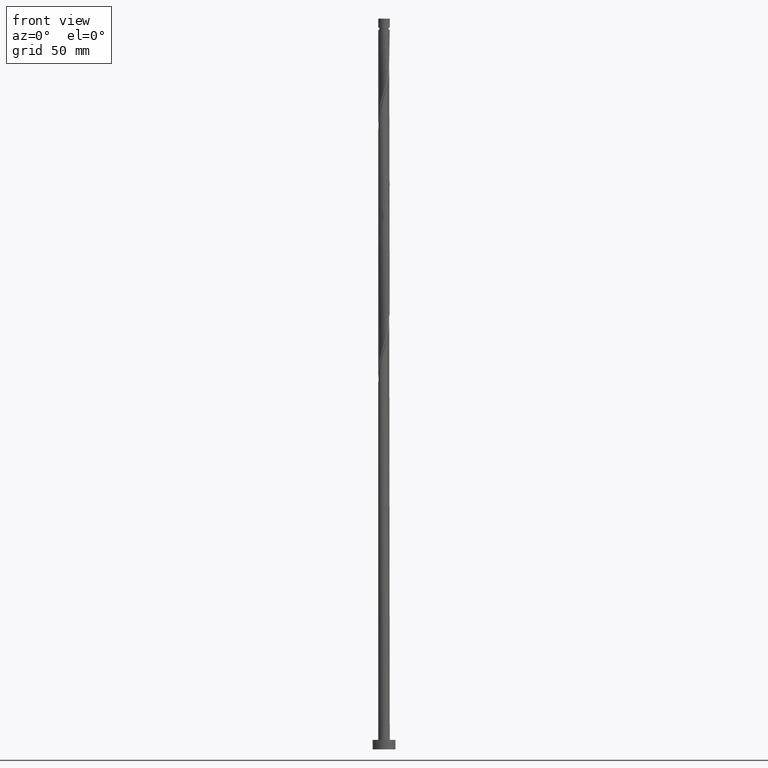
[diagram: clean part render]
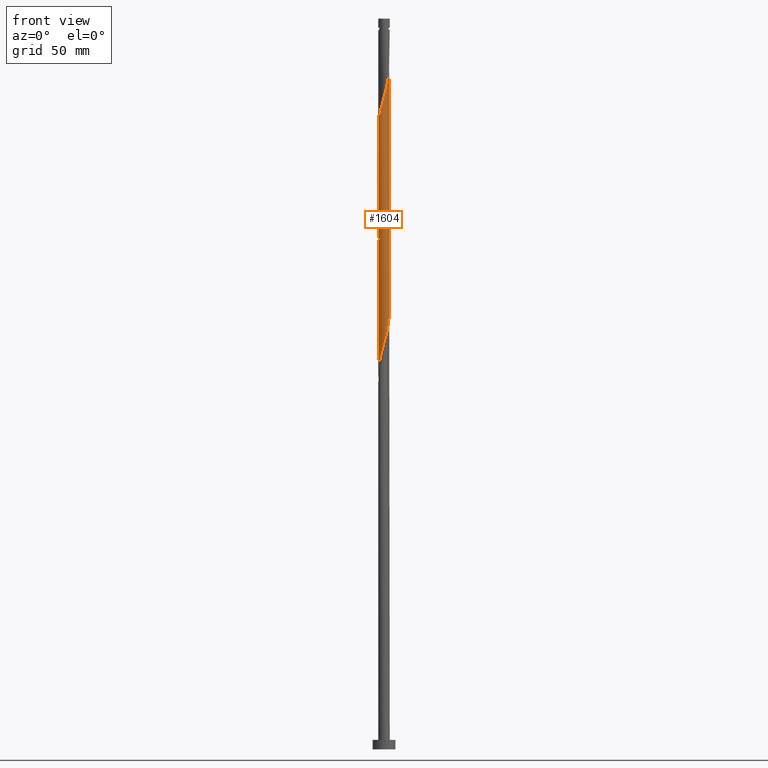
[diagram: same view with one face highlighted and labeled with its STEP entity id]
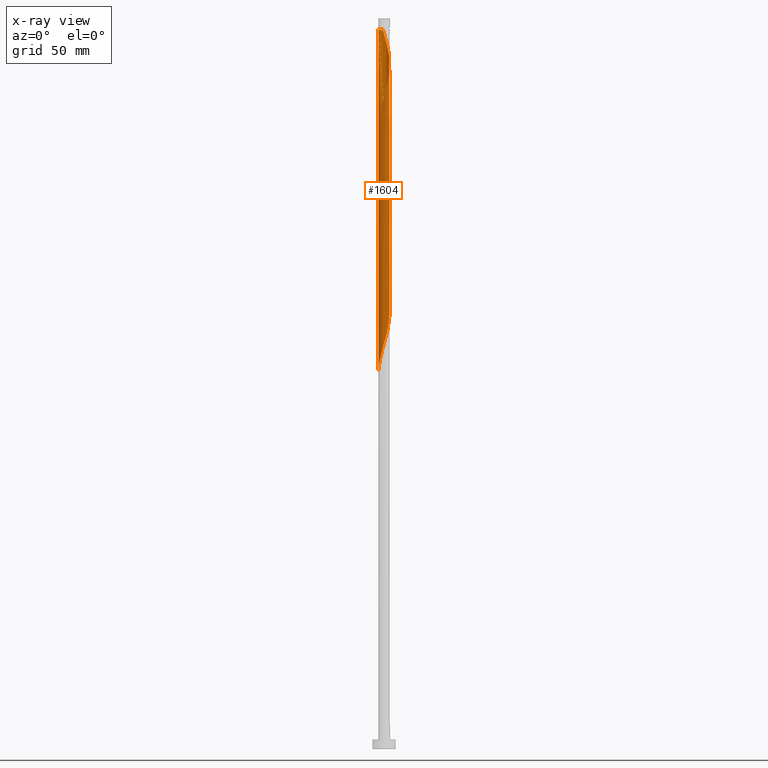
[diagram: x-ray of the same camera — body ghosted, the highlighted face saturated]
A machine part, front view. The second image highlights one B-rep face of the part: STEP entity #1604.
The next image is the same camera in x-ray: the body ghosted, the highlighted face saturated — about 0% of this face is hidden behind the body in this view.
In plain terms, the highlighted cylindrical surface (bore or boss wall) has radius 3 mm, axis along (-0, -0, -1).
Its self-contained STEP definition (entity closure, byte-faithful):
#1 = CARTESIAN_POINT ( 'NONE',  ( 1.785379858637176298, -2.410895841875524859, 287.1727578589047880 ) ) ;
#2 = CARTESIAN_POINT ( 'NONE',  ( -2.611625341554437263, 1.476283534877587122, 324.9505356366826163 ) ) ;
#11 = CARTESIAN_POINT ( 'NONE',  ( -2.766788993523056295, 1.201790650553047346, 259.3949800811271302 ) ) ;
#12 = CARTESIAN_POINT ( 'NONE',  ( -1.785379858637176520, 2.410895841875523971, 320.5060911922381024 ) ) ;
#30 = CARTESIAN_POINT ( 'NONE',  ( 2.247618455994266462, 1.987010638188426048, 367.1727578589048449 ) ) ;
#34 = CARTESIAN_POINT ( 'NONE',  ( -2.980586974261064004, -0.3407363920471026542, 198.2838689700159875 ) ) ;
#38 = CARTESIAN_POINT ( 'NONE',  ( 2.980586974261067557, -0.3407363920471044305, 358.2838689700159307 ) ) ;
#39 = ORIENTED_EDGE ( 'NONE', *, *, #964, .T. ) ;
#50 = CARTESIAN_POINT ( 'NONE',  ( -1.997955648279248875, -2.259998966801996190, 206.0616467477937590 ) ) ;
#54 = CARTESIAN_POINT ( 'NONE',  ( 2.424175730171095999, -1.795214230025625746, 352.7283134144604446 ) ) ;
#64 = AXIS2_PLACEMENT_3D ( 'NONE', #798, #668, #1389 ) ;
#80 = EDGE_CURVE ( 'NONE', #722, #960, #1482, .T. ) ;
#115 = CYLINDRICAL_SURFACE ( 'NONE', #1348, 3.000000000000000444 ) ;
#116 = CARTESIAN_POINT ( 'NONE',  ( 2.744447700168706206, 1.251970017003499303, 234.9505356366825879 ) ) ;
#123 = CARTESIAN_POINT ( 'NONE',  ( 2.766788993523055851, -1.201790650553048234, 226.0616467477937590 ) ) ;
#130 = CARTESIAN_POINT ( 'NONE',  ( -0.02731362638453790903, 2.999875658392149091, 247.1727578589048449 ) ) ;
#136 = CARTESIAN_POINT ( 'NONE',  ( -0.5969924622639753986, -2.939999999999999503, 278.2838689700159875 ) ) ;
#138 = VECTOR ( 'NONE', #659, 1000.000000000000000 ) ;
#141 = CARTESIAN_POINT ( 'NONE',  ( 3.000000000000000444, 3.673940397442060361E-16, 378.2838689700159875 ) ) ;
#144 = CARTESIAN_POINT ( 'NONE',  ( 3.000000000000000444, 3.673940397442060361E-16, 384.1999999999999886 ) ) ;
#146 = CARTESIAN_POINT ( 'NONE',  ( -1.997955648279248875, -2.259998966801996190, 272.7283134144603309 ) ) ;
#152 = CARTESIAN_POINT ( 'NONE',  ( -0.6504259784947283851, -2.928642355512055317, 340.5060911922382161 ) ) ;
#156 = CARTESIAN_POINT ( 'NONE',  ( 1.741185482790980066, 2.443004935426438262, 307.1727578589047312 ) ) ;
#163 = CARTESIAN_POINT ( 'NONE',  ( -2.247618455994265130, -1.987010638188427381, 333.8394245255715305 ) ) ;
#173 = ORIENTED_EDGE ( 'NONE', *, *, #292, .F. ) ;
#175 = CARTESIAN_POINT ( 'NONE',  ( -2.844610918258236421, -0.9529893618115735654, 200.5060911922382161 ) ) ;
#180 = CARTESIAN_POINT ( 'NONE',  ( -0.02731362638453969927, -2.999875658392153088, 342.7283134144605015 ) ) ;
#181 = VERTEX_POINT ( 'NONE', #191 ) ;
#191 = CARTESIAN_POINT ( 'NONE',  ( -3.000000000000000444, -1.076285910287875982E-15, 330.4093122135374188 ) ) ;
#218 = CARTESIAN_POINT ( 'NONE',  ( 3.000000000000000444, 1.793809850479793368E-15, 297.0759788802040475 ) ) ;
#228 = CARTESIAN_POINT ( 'NONE',  ( 3.000000000000000444, 1.793809850479793368E-15, 297.0759788802040475 ) ) ;
#247 = DIRECTION ( 'NONE',  ( -0.000000000000000000, -0.000000000000000000, -1.000000000000000000 ) ) ;
#248 = CARTESIAN_POINT ( 'NONE',  ( 3.000000000000001332, 0.1709212123392930549, 297.6815701895886832 ) ) ;
#257 = CARTESIAN_POINT ( 'NONE',  ( 2.211065689225170328, 2.027606598413808303, 238.2838689700159307 ) ) ;
#265 = CARTESIAN_POINT ( 'NONE',  ( 2.956194341916737578, -0.6002808636434374678, 228.2838689700159591 ) ) ;
#274 = CARTESIAN_POINT ( 'NONE',  ( -1.484415317302709703, -2.626010904050883443, 274.9505356366826732 ) ) ;
#282 = CARTESIAN_POINT ( 'NONE',  ( 1.785379858637176298, -2.410895841875524859, 220.5060911922381592 ) ) ;
#292 = EDGE_CURVE ( 'NONE', #1611, #181, #355, .T. ) ;
#297 = CARTESIAN_POINT ( 'NONE',  ( -0.9059989139450647100, -2.877253563794370805, 277.1727578589049017 ) ) ;
#298 = CARTESIAN_POINT ( 'NONE',  ( -0.3426132633519624049, 2.997004880578669539, 314.9505356366826732 ) ) ;
#300 = VECTOR ( 'NONE', #1778, 1000.000000000000000 ) ;
#312 = CARTESIAN_POINT ( 'NONE',  ( 1.195207115623887928, 2.751632233922626458, 309.3949800811270165 ) ) ;
#317 = CARTESIAN_POINT ( 'NONE',  ( 2.844610918258240861, -0.9529893618115777842, 356.0616467477938158 ) ) ;
#330 = CARTESIAN_POINT ( 'NONE',  ( -1.741185482790978956, -2.443004935426439150, 207.1727578589048449 ) ) ;
#336 = CARTESIAN_POINT ( 'NONE',  ( 1.785379858637181405, 2.410895841875527523, 369.3949800811271302 ) ) ;
#344 = VERTEX_POINT ( 'NONE', #937 ) ;
#355 = LINE ( 'NONE', #1219, #138 ) ;
#367 = CARTESIAN_POINT ( 'NONE',  ( 2.956194341916737578, -0.6002808636434374678, 294.9505356366827300 ) ) ;
#373 = CARTESIAN_POINT ( 'NONE',  ( 2.944774136347767080, 0.6540087066196468291, 299.3949800811270734 ) ) ;
#389 = CARTESIAN_POINT ( 'NONE',  ( 2.584311715169900214, 1.523592123514559304, 302.7283134144603309 ) ) ;
#399 = CARTESIAN_POINT ( 'NONE',  ( 2.844610918258236421, 0.9529893618115723442, 300.5060911922381592 ) ) ;
#400 = CARTESIAN_POINT ( 'NONE',  ( -2.456461689585819119, 1.750776419202128231, 257.1727578589048449 ) ) ;
#408 = CARTESIAN_POINT ( 'NONE',  ( -2.766788993523060292, -1.201790650553047568, 330.5060911922381024 ) ) ;
#409 = EDGE_CURVE ( 'NONE', #1611, #1455, #887, .T. ) ;
#410 = CARTESIAN_POINT ( 'NONE',  ( 3.016399812174360484, 0.02746407747455505491, 230.5060911922381592 ) ) ;
#418 = CARTESIAN_POINT ( 'NONE',  ( 2.247618455994259801, -1.987010638188425604, 289.3949800811269597 ) ) ;
#429 = CARTESIAN_POINT ( 'NONE',  ( -2.844610918258236421, -0.9529893618115735654, 267.1727578589049017 ) ) ;
#430 = CARTESIAN_POINT ( 'NONE',  ( -1.245111594254569631, 2.729413328510879921, 318.2838689700158170 ) ) ;
#439 = CARTESIAN_POINT ( 'NONE',  ( 0.6504259784947244993, -2.928642355512051321, 282.7283134144605015 ) ) ;
#449 = CARTESIAN_POINT ( 'NONE',  ( 2.211065689225174324, -2.027606598413812744, 351.6172023033493019 ) ) ;
#452 = CARTESIAN_POINT ( 'NONE',  ( 0.9582386936374888142, -2.860279830445434435, 217.1727578589049017 ) ) ;
#453 = CARTESIAN_POINT ( 'NONE',  ( 0.5969924622639756207, 2.939999999999999503, 311.6172023033492451 ) ) ;
#471 = CARTESIAN_POINT ( 'NONE',  ( 0.3426132633519640147, 2.997004880578673092, 374.9505356366825026 ) ) ;
#473 = CARTESIAN_POINT ( 'NONE',  ( -2.744447700168706206, -1.251970017003499525, 201.6172023033493304 ) ) ;
#480 = CARTESIAN_POINT ( 'NONE',  ( 2.766788993523062068, 1.201790650553046236, 363.8394245255714736 ) ) ;
#484 = CARTESIAN_POINT ( 'NONE',  ( 1.245111594254569187, -2.729413328510879921, 218.2838689700159875 ) ) ;
#489 =( BOUNDED_CURVE ( )  B_SPLINE_CURVE ( 2, ( #1881, #720, #1144, #1161, #1737, #408, #1009, #1210, #163, #1180, #1777, #884, #1363, #1203, #152, #1190, #180, #769, #1077, #1640, #906, #1502, #757, #1491, #449, #54, #1343, #777, #317, #1798, #38, #631, #1805, #747, #1046, #480, #637, #1218, #30, #1816, #336, #1477, #1032, #623, #607, #471, #1337, #1619, #1056 ),
 .UNSPECIFIED., .F., .T. ) 
 B_SPLINE_CURVE_WITH_KNOTS ( ( 3, 2, 2, 2, 2, 2, 2, 2, 2, 2, 2, 2, 2, 2, 2, 2, 2, 2, 2, 2, 2, 2, 2, 2, 3 ),
 ( 0.5545286012773121831, 0.5583333333333333481, 0.5666666666666666519, 0.5749999999999999556, 0.5833333333333332593, 0.5916666666666666741, 0.5999999999999999778, 0.6083333333333333925, 0.6166666666666666963, 0.6250000000000000000, 0.6333333333333333037, 0.6416666666666666075, 0.6500000000000001332, 0.6583333333333334370, 0.6666666666666668517, 0.6750000000000001554, 0.6833333333333333481, 0.6916666666666667629, 0.7000000000000000666, 0.7083333333333333703, 0.7166666666666667851, 0.7250000000000000888, 0.7333333333333335036, 0.7416666666666668073, 0.7500000000000001110 ),
 .UNSPECIFIED. ) 
 CURVE ( )  GEOMETRIC_REPRESENTATION_ITEM ( )  RATIONAL_B_SPLINE_CURVE ( ( 0.9066196499552491295, 0.9068171577856622978, 0.9090909090909607970, 0.9041108139712090708, 0.9090909090909607970, 0.9041108139712090708, 0.9090909090909607970, 0.9041108139712090708, 0.9090909090909607970, 0.9041108139712090708, 0.9090909090909607970, 0.9041108139712090708, 0.9090909090909607970, 0.9041108139712090708, 0.9090909090909607970, 0.9041108139712090708, 0.9090909090909607970, 0.9041108139712090708, 0.9090909090909607970, 0.9041108139712090708, 0.9090909090909607970, 0.9041108139712090708, 0.9090909090909607970, 0.9041108139712090708, 0.9090909090909607970, 0.9041108139712090708, 0.9090909090909607970, 0.9041108139712090708, 0.9090909090909607970, 0.9041108139712090708, 0.9090909090909607970, 0.9041108139712090708, 0.9090909090909607970, 0.9041108139712090708, 0.9090909090909607970, 0.9041108139712090708, 0.9090909090909607970, 0.9041108139712090708, 0.9090909090909607970, 0.9041108139712090708, 0.9090909090909607970, 0.9041108139712090708, 0.9090909090909607970, 0.9041108139712090708, 0.9090909090909607970, 0.9041108139712090708, 0.9090909090909607970, 0.9041108139712089597, 0.9090909090909609080 ) ) 
 REPRESENTATION_ITEM ( '' )  );
#514 =( BOUNDED_CURVE ( )  B_SPLINE_CURVE ( 2, ( #218, #1243, #1264, #367, #1845, #1706, #680, #538, #418, #1601, #1, #1281, #574, #564, #439, #1172, #1469, #589, #136, #297, #1758, #274, #732, #146, #1014, #1318, #1889, #580, #429, #1770, #1484, #1036, #1153, #1146, #1622, #11, #866, #400, #1308, #1450, #1882, #1458, #888, #1875, #1165, #1003, #130, #558, #1140, #1730, #1585, #1026, #724, #1291, #257, #848, #1441, #116, #1592, #706, #1738, #410, #1010, #265, #858, #123, #713, #1299, #1744, #1613, #282, #878, #484, #452, #625, #1643, #1339, #1070, #940, #930, #1820, #1206, #330, #50, #1367, #1087, #1080, #473, #175, #600, #34, #760, #1654 ),
 .UNSPECIFIED., .F., .T. ) 
 B_SPLINE_CURVE_WITH_KNOTS ( ( 3, 2, 2, 2, 2, 2, 2, 2, 2, 2, 2, 2, 2, 2, 2, 2, 2, 2, 2, 2, 2, 2, 2, 2, 2, 2, 2, 2, 2, 2, 2, 2, 2, 2, 2, 2, 2, 2, 2, 2, 2, 2, 2, 2, 2, 2, 3 ),
 ( 0.5545286012773115170, 0.5583333333333333481, 0.5666666666666666519, 0.5749999999999999556, 0.5833333333333333703, 0.5916666666666666741, 0.5999999999999999778, 0.6083333333333332815, 0.6166666666666666963, 0.6250000000000000000, 0.6333333333333333037, 0.6416666666666667185, 0.6500000000000000222, 0.6583333333333333259, 0.6666666666666666297, 0.6750000000000000444, 0.6833333333333333481, 0.6916666666666666519, 0.6999999999999999556, 0.7083333333333333703, 0.7166666666666666741, 0.7249999999999999778, 0.7333333333333332815, 0.7416666666666666963, 0.7500000000000000000, 0.7583333333333333037, 0.7666666666666667185, 0.7750000000000000222, 0.7833333333333333259, 0.7916666666666666297, 0.8000000000000000444, 0.8083333333333333481, 0.8166666666666666519, 0.8249999999999999556, 0.8333333333333333703, 0.8416666666666666741, 0.8499999999999999778, 0.8583333333333332815, 0.8666666666666666963, 0.8750000000000000000, 0.8833333333333333037, 0.8916666666666667185, 0.9000000000000000222, 0.9083333333333333259, 0.9166666666666666297, 0.9250000000000000444, 0.9295286012773112949 ),
 .UNSPECIFIED. ) 
 CURVE ( )  GEOMETRIC_REPRESENTATION_ITEM ( )  RATIONAL_B_SPLINE_CURVE ( ( 0.9066196499552428012, 0.9068171577856556365, 0.9090909090909544688, 0.9041108139712026315, 0.9090909090909544688, 0.9041108139712026315, 0.9090909090909544688, 0.9041108139712026315, 0.9090909090909544688, 0.9041108139712026315, 0.9090909090909544688, 0.9041108139712026315, 0.9090909090909544688, 0.9041108139712026315, 0.9090909090909544688, 0.9041108139712026315, 0.9090909090909544688, 0.9041108139712026315, 0.9090909090909544688, 0.9041108139712026315, 0.9090909090909544688, 0.9041108139712026315, 0.9090909090909544688, 0.9041108139712026315, 0.9090909090909544688, 0.9041108139712026315, 0.9090909090909544688, 0.9041108139712026315, 0.9090909090909544688, 0.9041108139712026315, 0.9090909090909544688, 0.9041108139712026315, 0.9090909090909544688, 0.9041108139712026315, 0.9090909090909544688, 0.9041108139712026315, 0.9090909090909544688, 0.9041108139712026315, 0.9090909090909544688, 0.9041108139712026315, 0.9090909090909544688, 0.9041108139712026315, 0.9090909090909544688, 0.9041108139712026315, 0.9090909090909544688, 0.9041108139712026315, 0.9090909090909544688, 0.9041108139712026315, 0.9090909090909544688, 0.9041108139712026315, 0.9090909090909544688, 0.9041108139712026315, 0.9090909090909544688, 0.9041108139712026315, 0.9090909090909544688, 0.9041108139712026315, 0.9090909090909544688, 0.9041108139712026315, 0.9090909090909544688, 0.9041108139712026315, 0.9090909090909544688, 0.9041108139712026315, 0.9090909090909544688, 0.9041108139712026315, 0.9090909090909544688, 0.9041108139712026315, 0.9090909090909544688, 0.9041108139712026315, 0.9090909090909544688, 0.9041108139712026315, 0.9090909090909544688, 0.9041108139712026315, 0.9090909090909544688, 0.9041108139712026315, 0.9090909090909544688, 0.9041108139712026315, 0.9090909090909544688, 0.9041108139712026315, 0.9090909090909544688, 0.9041108139712026315, 0.9090909090909544688, 0.9041108139712026315, 0.9090909090909544688, 0.9041108139712026315, 0.9090909090909544688, 0.9041108139712026315, 0.9090909090909544688, 0.9041108139712026315, 0.9090909090909544688, 0.9041108139712026315, 0.9090909090909544688, 0.9063845652765016858, 0.9066196499552428012 ) ) 
 REPRESENTATION_ITEM ( '' )  );
#538 = CARTESIAN_POINT ( 'NONE',  ( 2.456461689585817787, -1.750776419202129564, 290.5060911922382729 ) ) ;
#539 = LINE ( 'NONE', #1569, #822 ) ;
#558 = CARTESIAN_POINT ( 'NONE',  ( 0.2879860105828864758, 3.002746436205626868, 246.0616467477937590 ) ) ;
#564 = CARTESIAN_POINT ( 'NONE',  ( 0.9582386936374888142, -2.860279830445434435, 283.8394245255715305 ) ) ;
#574 = CARTESIAN_POINT ( 'NONE',  ( 1.245111594254569187, -2.729413328510879921, 284.9505356366825595 ) ) ;
#580 = CARTESIAN_POINT ( 'NONE',  ( -2.744447700168706206, -1.251970017003499525, 268.2838689700159875 ) ) ;
#581 = CARTESIAN_POINT ( 'NONE',  ( -2.456461689585819119, 1.750776419202128231, 323.8394245255715873 ) ) ;
#589 = CARTESIAN_POINT ( 'NONE',  ( -0.2879860105828876971, -3.002746436205627756, 279.3949800811270165 ) ) ;
#590 = CARTESIAN_POINT ( 'NONE',  ( -0.6504259784947257206, 2.928642355512050877, 316.0616467477937022 ) ) ;
#600 = CARTESIAN_POINT ( 'NONE',  ( -2.944774136347767524, -0.6540087066196481613, 199.3949800811271018 ) ) ;
#601 = CARTESIAN_POINT ( 'NONE',  ( -2.986297077045548143, 0.2864083930844402714, 329.3949800811271302 ) ) ;
#607 = CARTESIAN_POINT ( 'NONE',  ( 0.6504259784947298284, 2.928642355512054873, 373.8394245255715305 ) ) ;
#623 = CARTESIAN_POINT ( 'NONE',  ( 0.9582386936374928110, 2.860279830445437099, 372.7283134144603878 ) ) ;
#625 = CARTESIAN_POINT ( 'NONE',  ( 0.6504259784947244993, -2.928642355512051321, 216.0616467477937022 ) ) ;
#631 = CARTESIAN_POINT ( 'NONE',  ( 3.016399812174364481, -0.02746407747455939172, 359.3949800811269597 ) ) ;
#637 = CARTESIAN_POINT ( 'NONE',  ( 2.611625341554442148, 1.476283534877588677, 364.9505356366826163 ) ) ;
#659 = DIRECTION ( 'NONE',  ( -0.000000000000000000, -0.000000000000000000, -1.000000000000000000 ) ) ;
#662 = CARTESIAN_POINT ( 'NONE',  ( 2.424175730171095111, 1.795214230025620195, 303.8394245255715873 ) ) ;
#668 = DIRECTION ( 'NONE',  ( -0.000000000000000000, -0.000000000000000000, -1.000000000000000000 ) ) ;
#680 = CARTESIAN_POINT ( 'NONE',  ( 2.611625341554437263, -1.476283534877587567, 291.6172023033492451 ) ) ;
#706 = CARTESIAN_POINT ( 'NONE',  ( 2.944774136347767080, 0.6540087066196468291, 232.7283134144604162 ) ) ;
#713 = CARTESIAN_POINT ( 'NONE',  ( 2.611625341554437263, -1.476283534877587567, 224.9505356366826163 ) ) ;
#720 = CARTESIAN_POINT ( 'NONE',  ( -3.000000000000002220, -0.1435319978602762059, 326.6669742520586510 ) ) ;
#722 = VERTEX_POINT ( 'NONE', #141 ) ;
#724 = CARTESIAN_POINT ( 'NONE',  ( 1.741185482790980066, 2.443004935426438262, 240.5060911922381877 ) ) ;
#732 = CARTESIAN_POINT ( 'NONE',  ( -1.741185482790978956, -2.443004935426439150, 273.8394245255714736 ) ) ;
#733 = CARTESIAN_POINT ( 'NONE',  ( -2.038775222402703147, 2.223244857174722089, 321.6172023033493019 ) ) ;
#747 = CARTESIAN_POINT ( 'NONE',  ( 2.956194341916742019, 0.6002808636434369127, 361.6172023033493019 ) ) ;
#751 = CARTESIAN_POINT ( 'NONE',  ( 1.997955648279248875, 2.259998966801996190, 306.0616467477937590 ) ) ;
#757 = CARTESIAN_POINT ( 'NONE',  ( 1.741185482790979844, -2.443004935426445368, 349.3949800811270165 ) ) ;
#760 = CARTESIAN_POINT ( 'NONE',  ( -3.000000000000000444, -0.1709212123393024640, 197.6815701895887400 ) ) ;
#769 = CARTESIAN_POINT ( 'NONE',  ( 0.2879860105828854766, -3.002746436205631753, 343.8394245255714736 ) ) ;
#777 = CARTESIAN_POINT ( 'NONE',  ( 2.744447700168709758, -1.251970017003502855, 354.9505356366826163 ) ) ;
#798 = CARTESIAN_POINT ( 'NONE',  ( 0.000000000000000000, 0.000000000000000000, 378.2838689700159875 ) ) ;
#822 = VECTOR ( 'NONE', #1320, 1000.000000000000000 ) ;
#834 = CARTESIAN_POINT ( 'NONE',  ( -2.999999999999966693, 0.000000000000000000, 378.2838689700159875 ) ) ;
#848 = CARTESIAN_POINT ( 'NONE',  ( 2.424175730171095111, 1.795214230025620195, 237.1727578589048449 ) ) ;
#858 = CARTESIAN_POINT ( 'NONE',  ( 2.861491667719896270, -0.9010357570982439057, 227.1727578589048449 ) ) ;
#863 = FACE_OUTER_BOUND ( 'NONE', #1817, .T. ) ;
#866 = CARTESIAN_POINT ( 'NONE',  ( -2.611625341554437263, 1.476283534877587122, 258.2838689700159875 ) ) ;
#868 = CARTESIAN_POINT ( 'NONE',  ( -2.861491667719896270, 0.9010357570982424624, 327.1727578589048449 ) ) ;
#878 = CARTESIAN_POINT ( 'NONE',  ( 1.531984494871649449, -2.598546826576326296, 219.3949800811271302 ) ) ;
#884 = CARTESIAN_POINT ( 'NONE',  ( -1.531984494871653890, -2.598546826576329849, 337.1727578589049017 ) ) ;
#887 = CIRCLE ( 'NONE', #64, 2.999999999999966693 ) ;
#888 = CARTESIAN_POINT ( 'NONE',  ( -1.245111594254569631, 2.729413328510879921, 251.6172023033492735 ) ) ;
#889 = CARTESIAN_POINT ( 'NONE',  ( -0.02731362638453790903, 2.999875658392149091, 313.8394245255715873 ) ) ;
#906 = CARTESIAN_POINT ( 'NONE',  ( 1.195207115623887484, -2.751632233922632675, 347.1727578589049585 ) ) ;
#930 = CARTESIAN_POINT ( 'NONE',  ( -0.9059989139450647100, -2.877253563794370805, 210.5060911922382161 ) ) ;
#937 = CARTESIAN_POINT ( 'NONE',  ( -3.000000000000004441, -1.719067773376456763E-15, 326.1584257264944995 ) ) ;
#940 = CARTESIAN_POINT ( 'NONE',  ( -0.5969924622639753986, -2.939999999999999503, 211.6172023033493019 ) ) ;
#960 = VERTEX_POINT ( 'NONE', #1413 ) ;
#964 = EDGE_CURVE ( 'NONE', #344, #1239, #539, .T. ) ;
#965 =( BOUNDED_CURVE ( )  B_SPLINE_CURVE ( 2, ( #1792, #1602, #601, #1645, #868, #1470, #2, #581, #1166, #733, #12, #1759, #430, #1027, #590, #298, #889, #1485, #453, #1051, #312, #1495, #156, #751, #1368, #662, #389, #996, #399, #373, #1558, #248, #228 ),
 .UNSPECIFIED., .F., .T. ) 
 B_SPLINE_CURVE_WITH_KNOTS ( ( 3, 2, 2, 2, 2, 2, 2, 2, 2, 2, 2, 2, 2, 2, 2, 2, 3 ),
 ( 0.4295286012773115725, 0.4333333333333333481, 0.4416666666666666519, 0.4500000000000000111, 0.4583333333333333148, 0.4666666666666666741, 0.4749999999999999778, 0.4833333333333333370, 0.4916666666666666408, 0.5000000000000000000, 0.5083333333333333037, 0.5166666666666667185, 0.5250000000000000222, 0.5333333333333333259, 0.5416666666666666297, 0.5500000000000000444, 0.5545286012773115170 ),
 .UNSPECIFIED. ) 
 CURVE ( )  GEOMETRIC_REPRESENTATION_ITEM ( )  RATIONAL_B_SPLINE_CURVE ( ( 0.9066196499552428012, 0.9068171577856556365, 0.9090909090909544688, 0.9041108139712026315, 0.9090909090909544688, 0.9041108139712026315, 0.9090909090909544688, 0.9041108139712026315, 0.9090909090909544688, 0.9041108139712026315, 0.9090909090909544688, 0.9041108139712026315, 0.9090909090909544688, 0.9041108139712026315, 0.9090909090909544688, 0.9041108139712026315, 0.9090909090909544688, 0.9041108139712026315, 0.9090909090909544688, 0.9041108139712026315, 0.9090909090909544688, 0.9041108139712026315, 0.9090909090909544688, 0.9041108139712026315, 0.9090909090909544688, 0.9041108139712026315, 0.9090909090909544688, 0.9041108139712026315, 0.9090909090909544688, 0.9041108139712026315, 0.9090909090909544688, 0.9063845652765014638, 0.9066196499552428012 ) ) 
 REPRESENTATION_ITEM ( '' )  );
#996 = CARTESIAN_POINT ( 'NONE',  ( 2.744447700168706206, 1.251970017003499303, 301.6172023033493019 ) ) ;
#1003 = CARTESIAN_POINT ( 'NONE',  ( -0.3426132633519624049, 2.997004880578669539, 248.2838689700159875 ) ) ;
#1009 = CARTESIAN_POINT ( 'NONE',  ( -2.611625341554442148, -1.476283534877588677, 331.6172023033493588 ) ) ;
#1010 = CARTESIAN_POINT ( 'NONE',  ( 2.986297077045548143, -0.2864083930844412151, 229.3949800811270734 ) ) ;
#1014 = CARTESIAN_POINT ( 'NONE',  ( -2.211065689225170328, -2.027606598413808303, 271.6172023033491882 ) ) ;
#1021 = ORIENTED_EDGE ( 'NONE', *, *, #1151, .F. ) ;
#1026 = CARTESIAN_POINT ( 'NONE',  ( 1.484415317302710147, 2.626010904050882999, 241.6172023033493304 ) ) ;
#1027 = CARTESIAN_POINT ( 'NONE',  ( -0.9582386936374894804, 2.860279830445434435, 317.1727578589049017 ) ) ;
#1032 = CARTESIAN_POINT ( 'NONE',  ( 1.245111594254573628, 2.729413328510884806, 371.6172023033493019 ) ) ;
#1036 = CARTESIAN_POINT ( 'NONE',  ( -3.016399812174360484, -0.02746407747455685902, 263.8394245255715305 ) ) ;
#1046 = CARTESIAN_POINT ( 'NONE',  ( 2.861491667719901599, 0.9010357570982416853, 362.7283134144605583 ) ) ;
#1051 = CARTESIAN_POINT ( 'NONE',  ( 0.9059989139450660423, 2.877253563794370361, 310.5060911922382729 ) ) ;
#1056 = CARTESIAN_POINT ( 'NONE',  ( -0.5969924622640621070, 2.940000000000869917, 378.2838689700159875 ) ) ;
#1070 = CARTESIAN_POINT ( 'NONE',  ( -0.2879860105828876971, -3.002746436205627756, 212.7283134144604162 ) ) ;
#1077 = CARTESIAN_POINT ( 'NONE',  ( 0.5969924622639753986, -2.940000000000004388, 344.9505356366827300 ) ) ;
#1078 = ORIENTED_EDGE ( 'NONE', *, *, #1644, .F. ) ;
#1080 = CARTESIAN_POINT ( 'NONE',  ( -2.584311715169899326, -1.523592123514559526, 202.7283134144604162 ) ) ;
#1087 = CARTESIAN_POINT ( 'NONE',  ( -2.424175730171093335, -1.795214230025621749, 203.8394245255715305 ) ) ;
#1140 = CARTESIAN_POINT ( 'NONE',  ( 0.5969924622639756207, 2.939999999999999503, 244.9505356366826163 ) ) ;
#1144 = CARTESIAN_POINT ( 'NONE',  ( -2.986297077045553916, -0.2864083930844391057, 327.1727578589049017 ) ) ;
#1146 = CARTESIAN_POINT ( 'NONE',  ( -2.956194341916737578, 0.6002808636434372458, 261.6172023033493019 ) ) ;
#1151 = EDGE_CURVE ( 'NONE', #181, #960, #965, .T. ) ;
#1153 = CARTESIAN_POINT ( 'NONE',  ( -2.986297077045548143, 0.2864083930844402714, 262.7283134144603878 ) ) ;
#1161 = CARTESIAN_POINT ( 'NONE',  ( -2.956194341916742019, -0.6002808636434373568, 328.2838689700159307 ) ) ;
#1165 = CARTESIAN_POINT ( 'NONE',  ( -0.6504259784947257206, 2.928642355512050877, 249.3949800811270450 ) ) ;
#1166 = CARTESIAN_POINT ( 'NONE',  ( -2.247618455994259801, 1.987010638188424938, 322.7283134144604446 ) ) ;
#1172 = CARTESIAN_POINT ( 'NONE',  ( 0.3426132633519620718, -2.997004880578669983, 281.6172023033493019 ) ) ;
#1180 = CARTESIAN_POINT ( 'NONE',  ( -2.038775222402706255, -2.223244857174725198, 334.9505356366826163 ) ) ;
#1190 = CARTESIAN_POINT ( 'NONE',  ( -0.3426132633519636261, -2.997004880578672648, 341.6172023033492451 ) ) ;
#1203 = CARTESIAN_POINT ( 'NONE',  ( -0.9582386936374924780, -2.860279830445437543, 339.3949800811270165 ) ) ;
#1206 = CARTESIAN_POINT ( 'NONE',  ( -1.484415317302709703, -2.626010904050883443, 208.2838689700159875 ) ) ;
#1210 = CARTESIAN_POINT ( 'NONE',  ( -2.456461689585823560, -1.750776419202129786, 332.7283134144603309 ) ) ;
#1218 = CARTESIAN_POINT ( 'NONE',  ( 2.456461689585824448, 1.750776419202128231, 366.0616467477937590 ) ) ;
#1219 = CARTESIAN_POINT ( 'NONE',  ( -3.000000000000000444, 0.000000000000000000, 384.1999999999999886 ) ) ;
#1239 = VERTEX_POINT ( 'NONE', #1427 ) ;
#1243 = CARTESIAN_POINT ( 'NONE',  ( 2.999999999999999112, -0.1435319978602537516, 296.5674303546400097 ) ) ;
#1264 = CARTESIAN_POINT ( 'NONE',  ( 2.986297077045548143, -0.2864083930844412151, 296.0616467477937022 ) ) ;
#1281 = CARTESIAN_POINT ( 'NONE',  ( 1.531984494871649449, -2.598546826576326296, 286.0616467477937022 ) ) ;
#1291 = CARTESIAN_POINT ( 'NONE',  ( 1.997955648279248875, 2.259998966801996190, 239.3949800811270734 ) ) ;
#1299 = CARTESIAN_POINT ( 'NONE',  ( 2.456461689585817787, -1.750776419202129564, 223.8394245255715305 ) ) ;
#1308 = CARTESIAN_POINT ( 'NONE',  ( -2.247618455994259801, 1.987010638188424938, 256.0616467477937022 ) ) ;
#1318 = CARTESIAN_POINT ( 'NONE',  ( -2.424175730171093335, -1.795214230025621749, 270.5060911922382161 ) ) ;
#1319 = EDGE_CURVE ( 'NONE', #960, #1239, #514, .T. ) ;
#1320 = DIRECTION ( 'NONE',  ( -0.000000000000000000, -0.000000000000000000, -1.000000000000000000 ) ) ;
#1323 = ORIENTED_EDGE ( 'NONE', *, *, #80, .F. ) ;
#1337 = CARTESIAN_POINT ( 'NONE',  ( 0.02731362638454012601, 2.999875658392153088, 376.0616467477938158 ) ) ;
#1339 = CARTESIAN_POINT ( 'NONE',  ( 0.02731362638453716310, -2.999875658392148203, 213.8394245255715020 ) ) ;
#1343 = CARTESIAN_POINT ( 'NONE',  ( 2.584311715169903323, -1.523592123514564856, 353.8394245255715305 ) ) ;
#1348 = AXIS2_PLACEMENT_3D ( 'NONE', #1729, #247, #1766 ) ;
#1363 = CARTESIAN_POINT ( 'NONE',  ( -1.245111594254573184, -2.729413328510884806, 338.2838689700160444 ) ) ;
#1367 = CARTESIAN_POINT ( 'NONE',  ( -2.211065689225170328, -2.027606598413808303, 204.9505356366826447 ) ) ;
#1368 = CARTESIAN_POINT ( 'NONE',  ( 2.211065689225170328, 2.027606598413808303, 304.9505356366826163 ) ) ;
#1389 = DIRECTION ( 'NONE',  ( -1.000000000000000000, 0.000000000000000000, 0.000000000000000000 ) ) ;
#1413 = CARTESIAN_POINT ( 'NONE',  ( 3.000000000000000000, 1.793809850479793368E-15, 297.0759788802041044 ) ) ;
#1427 = CARTESIAN_POINT ( 'NONE',  ( -3.000000000000000000, -3.019579914974319488E-15, 197.0759788802041612 ) ) ;
#1441 = CARTESIAN_POINT ( 'NONE',  ( 2.584311715169900214, 1.523592123514559304, 236.0616467477937306 ) ) ;
#1450 = CARTESIAN_POINT ( 'NONE',  ( -2.038775222402703147, 2.223244857174722089, 254.9505356366825595 ) ) ;
#1455 = VERTEX_POINT ( 'NONE', #1676 ) ;
#1458 = CARTESIAN_POINT ( 'NONE',  ( -1.531984494871650337, 2.598546826576326296, 252.7283134144604446 ) ) ;
#1469 = CARTESIAN_POINT ( 'NONE',  ( 0.02731362638453716310, -2.999875658392148203, 280.5060911922381024 ) ) ;
#1470 = CARTESIAN_POINT ( 'NONE',  ( -2.766788993523056295, 1.201790650553047346, 326.0616467477937022 ) ) ;
#1477 = CARTESIAN_POINT ( 'NONE',  ( 1.531984494871654556, 2.598546826576328517, 370.5060911922381024 ) ) ;
#1482 = LINE ( 'NONE', #144, #300 ) ;
#1484 = CARTESIAN_POINT ( 'NONE',  ( -2.980586974261064004, -0.3407363920471026542, 264.9505356366826163 ) ) ;
#1485 = CARTESIAN_POINT ( 'NONE',  ( 0.2879860105828864758, 3.002746436205626868, 312.7283134144603878 ) ) ;
#1491 = CARTESIAN_POINT ( 'NONE',  ( 1.997955648279249319, -2.259998966802001075, 350.5060911922381592 ) ) ;
#1495 = CARTESIAN_POINT ( 'NONE',  ( 1.484415317302710147, 2.626010904050882999, 308.2838689700160444 ) ) ;
#1502 = CARTESIAN_POINT ( 'NONE',  ( 1.484415317302710591, -2.626010904050887884, 348.2838689700159307 ) ) ;
#1558 = CARTESIAN_POINT ( 'NONE',  ( 2.980586974261064004, 0.3407363920471023766, 298.2838689700159307 ) ) ;
#1569 = CARTESIAN_POINT ( 'NONE',  ( -3.000000000000000444, 0.000000000000000000, 384.1999999999999886 ) ) ;
#1585 = CARTESIAN_POINT ( 'NONE',  ( 1.195207115623887928, 2.751632233922626458, 242.7283134144603878 ) ) ;
#1592 = CARTESIAN_POINT ( 'NONE',  ( 2.844610918258236421, 0.9529893618115723442, 233.8394245255715873 ) ) ;
#1600 = ORIENTED_EDGE ( 'NONE', *, *, #409, .T. ) ;
#1601 = CARTESIAN_POINT ( 'NONE',  ( 2.038775222402703147, -2.223244857174722089, 288.2838689700159875 ) ) ;
#1602 = CARTESIAN_POINT ( 'NONE',  ( -2.999999999999999112, 0.1435319978602554725, 329.9007636879733809 ) ) ;
#1604 = ADVANCED_FACE ( 'NONE', ( #863 ), #115, .T. ) ;
#1606 = ORIENTED_EDGE ( 'NONE', *, *, #80, .T. ) ;
#1611 = VERTEX_POINT ( 'NONE', #834 ) ;
#1613 = CARTESIAN_POINT ( 'NONE',  ( 2.038775222402703147, -2.223244857174722089, 221.6172023033493019 ) ) ;
#1619 = CARTESIAN_POINT ( 'NONE',  ( -0.2879860105828881411, 3.002746436205632641, 377.1727578589048449 ) ) ;
#1622 = CARTESIAN_POINT ( 'NONE',  ( -2.861491667719896270, 0.9010357570982424624, 260.5060911922381592 ) ) ;
#1640 = CARTESIAN_POINT ( 'NONE',  ( 0.9059989139450634887, -2.877253563794376134, 346.0616467477936453 ) ) ;
#1643 = CARTESIAN_POINT ( 'NONE',  ( 0.3426132633519620718, -2.997004880578669983, 214.9505356366826447 ) ) ;
#1644 = EDGE_CURVE ( 'NONE', #344, #1455, #489, .T. ) ;
#1645 = CARTESIAN_POINT ( 'NONE',  ( -2.956194341916737578, 0.6002808636434372458, 328.2838689700159307 ) ) ;
#1654 = CARTESIAN_POINT ( 'NONE',  ( -3.000000000000000444, -3.019579914974319488E-15, 197.0759788802041328 ) ) ;
#1676 = CARTESIAN_POINT ( 'NONE',  ( -0.5969924622640619960, 2.940000000000869917, 378.2838689700159875 ) ) ;
#1681 = ORIENTED_EDGE ( 'NONE', *, *, #1319, .F. ) ;
#1706 = CARTESIAN_POINT ( 'NONE',  ( 2.766788993523055851, -1.201790650553048234, 292.7283134144603878 ) ) ;
#1729 = CARTESIAN_POINT ( 'NONE',  ( 0.000000000000000000, 0.000000000000000000, 384.1999999999999886 ) ) ;
#1730 = CARTESIAN_POINT ( 'NONE',  ( 0.9059989139450660423, 2.877253563794370361, 243.8394245255715020 ) ) ;
#1737 = CARTESIAN_POINT ( 'NONE',  ( -2.861491667719901599, -0.9010357570982425734, 329.3949800811271871 ) ) ;
#1738 = CARTESIAN_POINT ( 'NONE',  ( 2.980586974261064004, 0.3407363920471023766, 231.6172023033492451 ) ) ;
#1744 = CARTESIAN_POINT ( 'NONE',  ( 2.247618455994259801, -1.987010638188425604, 222.7283134144603878 ) ) ;
#1758 = CARTESIAN_POINT ( 'NONE',  ( -1.195207115623887484, -2.751632233922626458, 276.0616467477937590 ) ) ;
#1759 = CARTESIAN_POINT ( 'NONE',  ( -1.531984494871650337, 2.598546826576326296, 319.3949800811270165 ) ) ;
#1766 = DIRECTION ( 'NONE',  ( -1.000000000000000000, 0.000000000000000000, 0.000000000000000000 ) ) ;
#1770 = CARTESIAN_POINT ( 'NONE',  ( -2.944774136347767524, -0.6540087066196481613, 266.0616467477937590 ) ) ;
#1777 = CARTESIAN_POINT ( 'NONE',  ( -1.785379858637180517, -2.410895841875527523, 336.0616467477937022 ) ) ;
#1778 = DIRECTION ( 'NONE',  ( -0.000000000000000000, -0.000000000000000000, -1.000000000000000000 ) ) ;
#1792 = CARTESIAN_POINT ( 'NONE',  ( -3.000000000000000444, -1.076285910287875982E-15, 330.4093122135374188 ) ) ;
#1798 = CARTESIAN_POINT ( 'NONE',  ( 2.944774136347770632, -0.6540087066196521581, 357.1727578589047312 ) ) ;
#1805 = CARTESIAN_POINT ( 'NONE',  ( 2.986297077045553916, 0.2864083930844375514, 360.5060911922382729 ) ) ;
#1816 = CARTESIAN_POINT ( 'NONE',  ( 2.038775222402706699, 2.223244857174724753, 368.2838689700159875 ) ) ;
#1817 = EDGE_LOOP ( 'NONE', ( #173, #1600, #1078, #39, #1681, #1323, #1606, #1021 ) ) ;
#1820 = CARTESIAN_POINT ( 'NONE',  ( -1.195207115623887484, -2.751632233922626458, 209.3949800811270165 ) ) ;
#1845 = CARTESIAN_POINT ( 'NONE',  ( 2.861491667719896270, -0.9010357570982439057, 293.8394245255715305 ) ) ;
#1875 = CARTESIAN_POINT ( 'NONE',  ( -0.9582386936374894804, 2.860279830445434435, 250.5060911922382161 ) ) ;
#1881 = CARTESIAN_POINT ( 'NONE',  ( -3.000000000000004441, -1.719067773376456763E-15, 326.1584257264944995 ) ) ;
#1882 = CARTESIAN_POINT ( 'NONE',  ( -1.785379858637176520, 2.410895841875523971, 253.8394245255714452 ) ) ;
#1889 = CARTESIAN_POINT ( 'NONE',  ( -2.584311715169899326, -1.523592123514559526, 269.3949800811271302 ) ) ;